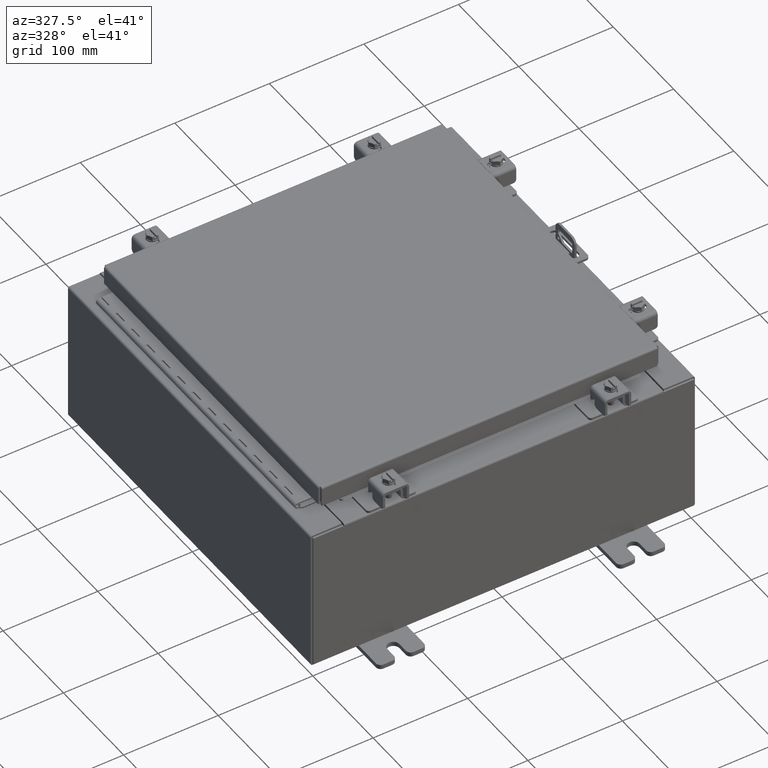
[diagram: clean part render]
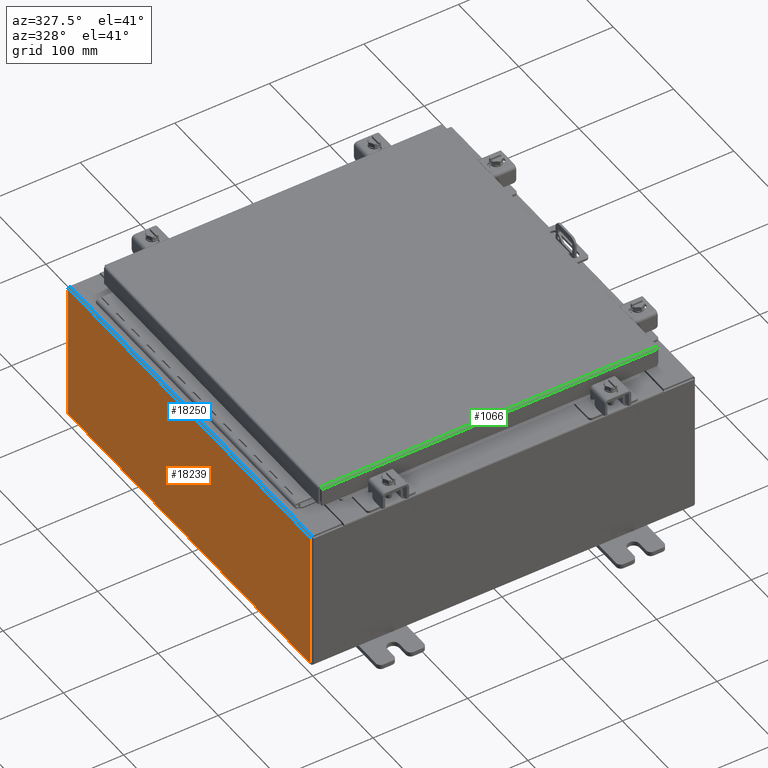
[diagram: same view with three faces highlighted in distinct colors, each labeled with its STEP entity id]
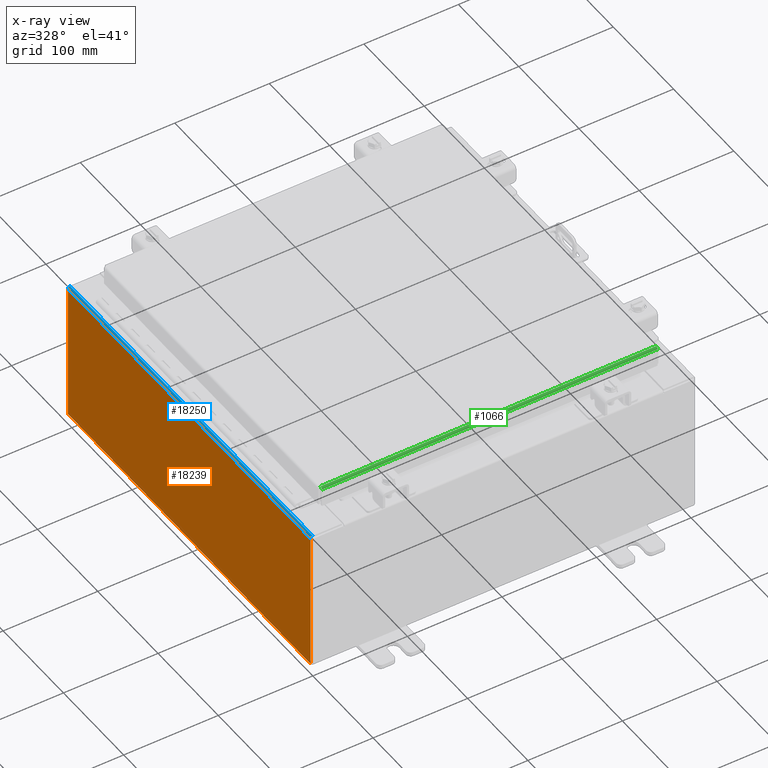
[diagram: x-ray of the same camera — body ghosted, the three highlighted faces saturated]
A machine part, auxiliary view with three faces highlighted in distinct colors.
The next image is the same camera in x-ray (body ghosted, the three faces saturated) — at least one of them is partly hidden behind the body in this view.
Their STEP definitions:

[orange] entity #18239 — the highlighted planar face has unit normal (1, 0, 0).
#214 = PLANE ( 'NONE',  #9200 ) ;
#600 = CARTESIAN_POINT ( 'NONE',  ( -8.000000000000001800, -7.925300000000000900, 0.01299999999999984700 ) ) ;
#1417 = ORIENTED_EDGE ( 'NONE', *, *, #24136, .T. ) ;
#1932 = DIRECTION ( 'NONE',  ( -0.0000000000000000000, 1.000000000000000000, -0.0000000000000000000 ) ) ;
#1951 = LINE ( 'NONE', #20945, #17979 ) ;
#2504 = CARTESIAN_POINT ( 'NONE',  ( -8.000000000000023100, -7.925300000000000000, 5.837599999999999200 ) ) ;
#3591 = ORIENTED_EDGE ( 'NONE', *, *, #7654, .T. ) ;
#3737 = CARTESIAN_POINT ( 'NONE',  ( -8.000000000000001800, 7.925299999999998200, 0.01299999999999984500 ) ) ;
#3849 = VECTOR ( 'NONE', #12295, 39.37007874015748100 ) ;
#4574 = CARTESIAN_POINT ( 'NONE',  ( -8.000000000000001800, -7.925300000000000900, -2.683095728639523400E-014 ) ) ;
#6661 = VERTEX_POINT ( 'NONE', #3737 ) ;
#7654 = EDGE_CURVE ( 'NONE', #17158, #9266, #1951, .T. ) ;
#8141 = ORIENTED_EDGE ( 'NONE', *, *, #20375, .F. ) ;
#8339 = DIRECTION ( 'NONE',  ( 1.000000000000000000, 0.0000000000000000000, 3.503965158194251300E-015 ) ) ;
#9200 = AXIS2_PLACEMENT_3D ( 'NONE', #14282, #8339, #22385 ) ;
#9266 = VERTEX_POINT ( 'NONE', #12365 ) ;
#10974 = DIRECTION ( 'NONE',  ( 0.0000000000000000000, 1.000000000000000000, 0.0000000000000000000 ) ) ;
#12295 = DIRECTION ( 'NONE',  ( 3.503965158194252100E-015, 0.0000000000000000000, -1.000000000000000000 ) ) ;
#12365 = CARTESIAN_POINT ( 'NONE',  ( -8.000000000000021300, 7.925299999999998200, 5.837599999999999200 ) ) ;
#12984 = FACE_OUTER_BOUND ( 'NONE', #19344, .T. ) ;
#14159 = LINE ( 'NONE', #26043, #14795 ) ;
#14282 = CARTESIAN_POINT ( 'NONE',  ( -8.000000000000001800, 0.0000000000000000000, -2.829253492156559800E-014 ) ) ;
#14795 = VECTOR ( 'NONE', #1932, 39.37007874015748100 ) ;
#15224 = ORIENTED_EDGE ( 'NONE', *, *, #25396, .T. ) ;
#16291 = CARTESIAN_POINT ( 'NONE',  ( -8.000000000000001800, 7.925299999999998200, -2.829253492156559800E-014 ) ) ;
#17158 = VERTEX_POINT ( 'NONE', #2504 ) ;
#17979 = VECTOR ( 'NONE', #10974, 39.37007874015748100 ) ;
#18239 = ADVANCED_FACE ( 'NONE', ( #12984 ), #214, .F. ) ;
#19344 = EDGE_LOOP ( 'NONE', ( #3591, #1417, #8141, #15224 ) ) ;
#19626 = VERTEX_POINT ( 'NONE', #600 ) ;
#20136 = VECTOR ( 'NONE', #20639, 39.37007874015748100 ) ;
#20375 = EDGE_CURVE ( 'NONE', #19626, #6661, #14159, .T. ) ;
#20639 = DIRECTION ( 'NONE',  ( -3.503965158194252100E-015, 1.844192188523290500E-016, 1.000000000000000000 ) ) ;
#20945 = CARTESIAN_POINT ( 'NONE',  ( -8.000000000000023100, -7.925300000000000900, 5.837599999999999200 ) ) ;
#22385 = DIRECTION ( 'NONE',  ( 3.503965158194251300E-015, 0.0000000000000000000, -1.000000000000000000 ) ) ;
#24136 = EDGE_CURVE ( 'NONE', #9266, #6661, #24651, .T. ) ;
#24651 = LINE ( 'NONE', #16291, #3849 ) ;
#25396 = EDGE_CURVE ( 'NONE', #19626, #17158, #25548, .T. ) ;
#25548 = LINE ( 'NONE', #4574, #20136 ) ;
#26043 = CARTESIAN_POINT ( 'NONE',  ( -8.000000000000001800, 7.925299999999998200, 0.01299999999999984700 ) ) ;

[blue] entity #18250 — the highlighted cylindrical surface (edge-blend (fillet) strip) has radius 2.2276 mm, axis along (-0, -1, -0).
#220 = CIRCLE ( 'NONE', #13440, 0.08770000000000026400 ) ;
#302 = DIRECTION ( 'NONE',  ( -1.245996804407870000E-014, 0.0000000000000000000, 1.000000000000000000 ) ) ;
#1951 = LINE ( 'NONE', #20945, #17979 ) ;
#2504 = CARTESIAN_POINT ( 'NONE',  ( -8.000000000000023100, -7.925300000000000000, 5.837599999999999200 ) ) ;
#2798 = CARTESIAN_POINT ( 'NONE',  ( -7.912300000000022300, -7.925300000000000000, 5.925299999999999100 ) ) ;
#3164 = LINE ( 'NONE', #4819, #23323 ) ;
#3210 = CARTESIAN_POINT ( 'NONE',  ( -7.912300000000022300, 7.925299999999998200, 5.925299999999999100 ) ) ;
#3802 = EDGE_CURVE ( 'NONE', #9266, #4318, #11563, .T. ) ;
#4318 = VERTEX_POINT ( 'NONE', #3210 ) ;
#4819 = CARTESIAN_POINT ( 'NONE',  ( -7.912300000000021400, 7.925299999999998200, 5.925299999999999100 ) ) ;
#4999 = AXIS2_PLACEMENT_3D ( 'NONE', #25918, #7965, #10643 ) ;
#6396 = CYLINDRICAL_SURFACE ( 'NONE', #13191, 0.08770000000000026400 ) ;
#7042 = FACE_OUTER_BOUND ( 'NONE', #20431, .T. ) ;
#7654 = EDGE_CURVE ( 'NONE', #17158, #9266, #1951, .T. ) ;
#7965 = DIRECTION ( 'NONE',  ( 0.0000000000000000000, 1.000000000000000000, 0.0000000000000000000 ) ) ;
#8994 = ORIENTED_EDGE ( 'NONE', *, *, #20643, .T. ) ;
#9266 = VERTEX_POINT ( 'NONE', #12365 ) ;
#10643 = DIRECTION ( 'NONE',  ( 0.0000000000000000000, 0.0000000000000000000, -1.000000000000000000 ) ) ;
#10974 = DIRECTION ( 'NONE',  ( 0.0000000000000000000, 1.000000000000000000, 0.0000000000000000000 ) ) ;
#11563 = CIRCLE ( 'NONE', #4999, 0.08770000000000026400 ) ;
#11566 = DIRECTION ( 'NONE',  ( -0.0000000000000000000, -1.000000000000000000, -0.0000000000000000000 ) ) ;
#12365 = CARTESIAN_POINT ( 'NONE',  ( -8.000000000000021300, 7.925299999999998200, 5.837599999999999200 ) ) ;
#13191 = AXIS2_PLACEMENT_3D ( 'NONE', #14377, #16383, #302 ) ;
#13440 = AXIS2_PLACEMENT_3D ( 'NONE', #23624, #11566, #25650 ) ;
#13782 = ORIENTED_EDGE ( 'NONE', *, *, #3802, .F. ) ;
#14377 = CARTESIAN_POINT ( 'NONE',  ( -7.912300000000022300, -7.925300000000000900, 5.837599999999999200 ) ) ;
#15140 = EDGE_CURVE ( 'NONE', #20686, #17158, #220, .T. ) ;
#16383 = DIRECTION ( 'NONE',  ( -0.0000000000000000000, -1.000000000000000000, -0.0000000000000000000 ) ) ;
#17158 = VERTEX_POINT ( 'NONE', #2504 ) ;
#17979 = VECTOR ( 'NONE', #10974, 39.37007874015748100 ) ;
#18250 = ADVANCED_FACE ( 'NONE', ( #7042 ), #6396, .T. ) ;
#18528 = ORIENTED_EDGE ( 'NONE', *, *, #7654, .F. ) ;
#20431 = EDGE_LOOP ( 'NONE', ( #18528, #22105, #8994, #13782 ) ) ;
#20643 = EDGE_CURVE ( 'NONE', #20686, #4318, #3164, .T. ) ;
#20686 = VERTEX_POINT ( 'NONE', #2798 ) ;
#20883 = DIRECTION ( 'NONE',  ( 6.893992640440775600E-017, 1.000000000000000000, 4.917321139196952400E-031 ) ) ;
#20945 = CARTESIAN_POINT ( 'NONE',  ( -8.000000000000023100, -7.925300000000000900, 5.837599999999999200 ) ) ;
#22105 = ORIENTED_EDGE ( 'NONE', *, *, #15140, .F. ) ;
#23323 = VECTOR ( 'NONE', #20883, 39.37007874015748100 ) ;
#23624 = CARTESIAN_POINT ( 'NONE',  ( -7.912300000000022300, -7.925300000000000000, 5.837599999999999200 ) ) ;
#25650 = DIRECTION ( 'NONE',  ( 0.0000000000000000000, 0.0000000000000000000, -1.000000000000000000 ) ) ;
#25918 = CARTESIAN_POINT ( 'NONE',  ( -7.912300000000022300, 7.925299999999998200, 5.837599999999999200 ) ) ;

[green] entity #1066 — the highlighted cylindrical surface (edge-blend (fillet) strip) has radius 2.2276 mm, axis along (-1, 0, 0).
#31 = ORIENTED_EDGE ( 'NONE', *, *, #19504, .F. ) ;
#148 = CARTESIAN_POINT ( 'NONE',  ( -6.989919288125423500, -7.050467384578529300, -0.01106893374133176100 ) ) ;
#1066 = ADVANCED_FACE ( 'NONE', ( #23969 ), #1942, .T. ) ;
#1626 = CARTESIAN_POINT ( 'NONE',  ( 6.989824110156780200, -7.060195747341800200, -0.01756921792167976500 ) ) ;
#1942 = CYLINDRICAL_SURFACE ( 'NONE', #10021, 0.08770000000000026400 ) ;
#2133 = CARTESIAN_POINT ( 'NONE',  ( -6.989157864376270600, -7.094000000000000300, -0.08770000000000007000 ) ) ;
#2215 = CARTESIAN_POINT ( 'NONE',  ( -6.990204822031358000, -7.017779903154993400, -2.038214714022946300E-016 ) ) ;
#3547 = CARTESIAN_POINT ( 'NONE',  ( -6.990300000000001300, -7.006300000000000400, -2.048885995248197400E-016 ) ) ;
#3640 = CARTESIAN_POINT ( 'NONE',  ( 6.989538576250843100, -7.082931066258669100, -0.04353261542147223600 ) ) ;
#4008 = EDGE_CURVE ( 'NONE', #24690, #10961, #22559, .T. ) ;
#4136 = CARTESIAN_POINT ( 'NONE',  ( -6.989253042344915700, -7.093999999999999400, -0.07622009684500735700 ) ) ;
#4922 = VERTEX_POINT ( 'NONE', #19263 ) ;
#5333 = ORIENTED_EDGE ( 'NONE', *, *, #7732, .F. ) ;
#5415 = LINE ( 'NONE', #3547, #16048 ) ;
#5666 = CARTESIAN_POINT ( 'NONE',  ( 6.989253042344914000, -7.094000000000000300, -0.07622009684500738500 ) ) ;
#6029 = CARTESIAN_POINT ( 'NONE',  ( -6.989157864376270600, -7.094000000000000300, -0.08770000000000007000 ) ) ;
#7162 = VECTOR ( 'NONE', #11984, 39.37007874015748100 ) ;
#7625 = CARTESIAN_POINT ( 'NONE',  ( 6.990299999999998600, -7.006300000000000400, -2.048885995248197400E-016 ) ) ;
#7732 = EDGE_CURVE ( 'NONE', #13067, #4922, #5415, .T. ) ;
#8993 = B_SPLINE_CURVE_WITH_KNOTS ( 'NONE', 3,
 ( #2133, #4136, #22250, #10225, #24298, #12230, #148, #14218, #2215, #16223 ),
 .UNSPECIFIED., .F., .F.,
 ( 4, 2, 2, 2, 4 ),
 ( 0.0000000000000000000, 0.2500000000000000000, 0.5000000000000000000, 0.7500000000000000000, 1.000000000000000000 ),
 .UNSPECIFIED. ) ;
#9415 = ORIENTED_EDGE ( 'NONE', *, *, #12226, .F. ) ;
#10021 = AXIS2_PLACEMENT_3D ( 'NONE', #20280, #20163, #13072 ) ;
#10225 = CARTESIAN_POINT ( 'NONE',  ( -6.989538576250845700, -7.082931066258667300, -0.04353261542147222900 ) ) ;
#10961 = VERTEX_POINT ( 'NONE', #19117 ) ;
#11984 = DIRECTION ( 'NONE',  ( 1.000000000000000000, 3.535949605205718300E-031, -9.638176865770766400E-046 ) ) ;
#12226 = EDGE_CURVE ( 'NONE', #4922, #10961, #22170, .T. ) ;
#12230 = CARTESIAN_POINT ( 'NONE',  ( -6.989824110156780200, -7.060195747341798400, -0.01756921792167976500 ) ) ;
#13067 = VERTEX_POINT ( 'NONE', #13863 ) ;
#13072 = DIRECTION ( 'NONE',  ( 0.0000000000000000000, -1.000000000000000000, 2.725618009642215600E-015 ) ) ;
#13633 = CARTESIAN_POINT ( 'NONE',  ( 6.989919288125422600, -7.050467384578525700, -0.01106893374133176100 ) ) ;
#13863 = CARTESIAN_POINT ( 'NONE',  ( -6.990300000000001300, -7.006300000000000400, -2.048885995248197400E-016 ) ) ;
#14218 = CARTESIAN_POINT ( 'NONE',  ( -6.990109644062713700, -7.029255289458310700, -0.002282596256188923000 ) ) ;
#15641 = CARTESIAN_POINT ( 'NONE',  ( 6.989633754219490800, -7.076430782078319700, -0.03380425265820009900 ) ) ;
#16048 = VECTOR ( 'NONE', #17601, 39.37007874015748100 ) ;
#16223 = CARTESIAN_POINT ( 'NONE',  ( -6.990300000000001300, -7.006300000000000400, -2.048885995248197400E-016 ) ) ;
#17601 = DIRECTION ( 'NONE',  ( 1.000000000000000000, -0.0000000000000000000, -0.0000000000000000000 ) ) ;
#17685 = CARTESIAN_POINT ( 'NONE',  ( 6.989348220313555500, -7.091717403743812700, -0.06474471054169121700 ) ) ;
#18361 = ORIENTED_EDGE ( 'NONE', *, *, #4008, .T. ) ;
#19117 = CARTESIAN_POINT ( 'NONE',  ( 6.989157864376268800, -7.094000000000000300, -0.08770000000000007000 ) ) ;
#19263 = CARTESIAN_POINT ( 'NONE',  ( 6.990299999999998600, -7.006300000000000400, -2.048885995248197400E-016 ) ) ;
#19504 = EDGE_CURVE ( 'NONE', #24690, #13067, #8993, .T. ) ;
#19630 = CARTESIAN_POINT ( 'NONE',  ( 6.990204822031355300, -7.017779903154994300, -2.037881236484656600E-016 ) ) ;
#19717 = CARTESIAN_POINT ( 'NONE',  ( 6.989157864376268800, -7.094000000000000300, -0.08770000000000007000 ) ) ;
#20163 = DIRECTION ( 'NONE',  ( -1.000000000000000000, 0.0000000000000000000, 0.0000000000000000000 ) ) ;
#20280 = CARTESIAN_POINT ( 'NONE',  ( -6.990300000000001300, -7.006300000000000400, -0.08770000000000030500 ) ) ;
#20494 = CARTESIAN_POINT ( 'NONE',  ( 7.078000000000001200, -7.094000000000000300, -0.08770000000000007000 ) ) ;
#22170 = B_SPLINE_CURVE_WITH_KNOTS ( 'NONE', 3,
 ( #7625, #19630, #25751, #13633, #1626, #15641, #3640, #17685, #5666, #19717 ),
 .UNSPECIFIED., .F., .F.,
 ( 4, 2, 2, 2, 4 ),
 ( 0.0000000000000000000, 0.2500000000000000000, 0.5000000000000000000, 0.7500000000000000000, 1.000000000000000000 ),
 .UNSPECIFIED. ) ;
#22250 = CARTESIAN_POINT ( 'NONE',  ( -6.989348220313560800, -7.091717403743812700, -0.06474471054169121700 ) ) ;
#22559 = LINE ( 'NONE', #20494, #7162 ) ;
#22833 = EDGE_LOOP ( 'NONE', ( #5333, #31, #18361, #9415 ) ) ;
#23969 = FACE_OUTER_BOUND ( 'NONE', #22833, .T. ) ;
#24298 = CARTESIAN_POINT ( 'NONE',  ( -6.989633754219491700, -7.076430782078321400, -0.03380425265820009200 ) ) ;
#24690 = VERTEX_POINT ( 'NONE', #6029 ) ;
#25751 = CARTESIAN_POINT ( 'NONE',  ( 6.990109644062712800, -7.029255289458311600, -0.002282596256188923400 ) ) ;